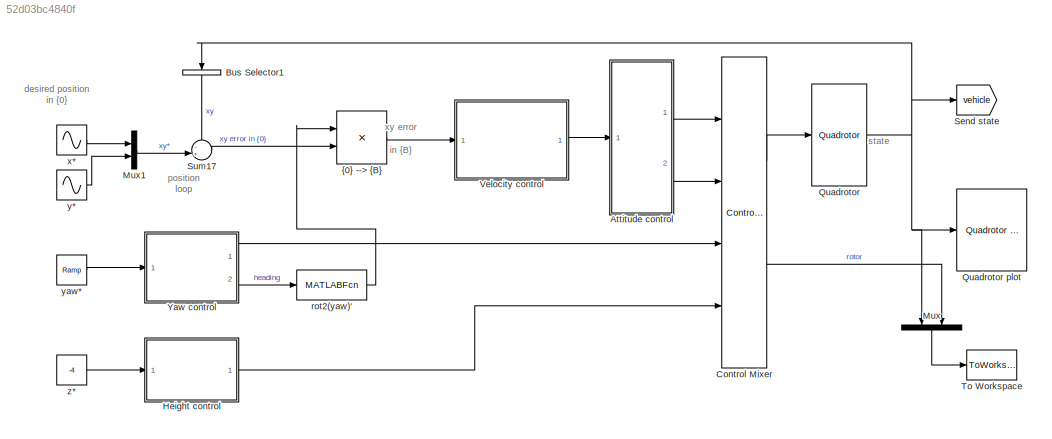
MODEL slx_52d03bc4840f
KIND model
CONFIG AbsTol = auto
CONFIG FixedStep = auto
CONFIG MaxStep = 0.1
CONFIG MinStep = auto
CONFIG PreLoadFcn = % load parameters of the default quadrotor\ndisp('Quadrotor parameters loaded by PreLoadFcn')\nmdl_quadrotor
CONFIG RelTol = 1e-3
CONFIG SampleTimeConstraint = Unconstrained
CONFIG Solver = ode45
CONFIG SolverMode = Auto
CONFIG SolverName = ode45
CONFIG StartTime = 0.0
CONFIG StopTime = 10
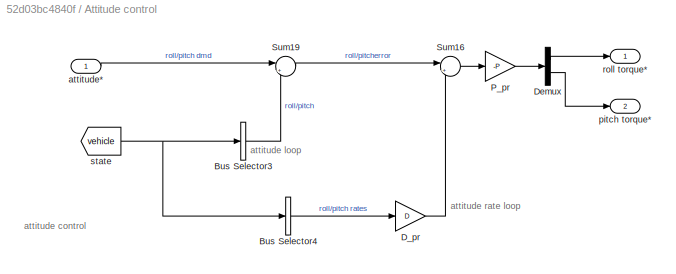
BLOCK [SubSystem] Attitude control
  Ports = [1, 2]
  RequestExecContextInheritance = off
  Variant = off
BLOCK [BusSelector] Attitude control/Bus Selector3
  OutputAsBus = on
  OutputSignals = roll,pitch
  Ports = [1, 1]
BLOCK [BusSelector] Attitude control/Bus Selector4
  OutputAsBus = on
  OutputSignals = droll,dpitch
  Ports = [1, 1]
BLOCK [Gain] Attitude control/D_pr
  Gain = D
  OutDataTypeStr = Inherit: Inherit via internal rule
  ParamDataTypeStr = Inherit: Inherit via internal rule
  SaturateOnIntegerOverflow = off
BLOCK [Demux] Attitude control/Demux
  DisplayOption = bar
  Outputs = 2
  Ports = [1, 2]
BLOCK [Gain] Attitude control/P_pr
  Gain = -P
  OutDataTypeStr = Inherit: Inherit via internal rule
  ParamDataTypeStr = Inherit: Inherit via internal rule
  SaturateOnIntegerOverflow = off
BLOCK [Sum] Attitude control/Sum16
  IconShape = round
  InputSameDT = off
  Inputs = |+-
  OutDataTypeStr = Inherit: Inherit via internal rule
  Ports = [2, 1]
  SaturateOnIntegerOverflow = off
BLOCK [Sum] Attitude control/Sum19
  IconShape = round
  InputSameDT = off
  Inputs = |+-
  OutDataTypeStr = Inherit: Inherit via internal rule
  Ports = [2, 1]
  SaturateOnIntegerOverflow = off
BLOCK [Inport] Attitude control/attitude*
  IconDisplay = Port number
BLOCK [Outport] Attitude control/pitch torque*
  IconDisplay = Port number
  Port = 2
BLOCK [Outport] Attitude control/roll torque*
  IconDisplay = Port number
BLOCK [From] Attitude control/state
  GotoTag = vehicle
  IconDisplay = Tag and signal name
  TagVisibility = global
BLOCK [BusSelector] Bus Selector1
  OutputAsBus = on
  OutputSignals = X,Y
  Ports = [1, 1]
BLOCK [Reference] Control Mixer  REF=roblocks/Vehicles/Control Mixer 4  (lib defined in mdl_2a292b13c81b, mdl_69400f8cfe22, +12 more)
  Ports = [4, 2]
  SourceBlock = roblocks/Vehicles/Control Mixer 4
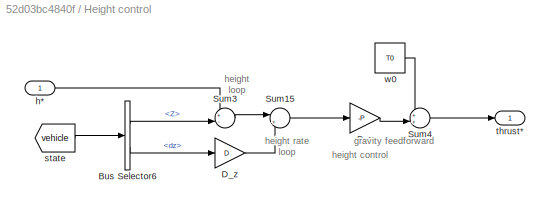
BLOCK [SubSystem] Height control
  Ports = [1, 1]
  RequestExecContextInheritance = off
  Variant = off
BLOCK [BusSelector] Height control/Bus Selector6
  OutputSignals = Z,dz
  Ports = [1, 2]
BLOCK [Gain] Height control/D_z
  Gain = D
  OutDataTypeStr = Inherit: Inherit via internal rule
  ParamDataTypeStr = Inherit: Inherit via internal rule
  SaturateOnIntegerOverflow = off
BLOCK [Gain] Height control/P_z
  Gain = -P
  OutDataTypeStr = Inherit: Inherit via internal rule
  ParamDataTypeStr = Inherit: Inherit via internal rule
  SaturateOnIntegerOverflow = off
BLOCK [Sum] Height control/Sum15
  IconShape = round
  InputSameDT = off
  Inputs = |+-
  OutDataTypeStr = Inherit: Inherit via internal rule
  Ports = [2, 1]
  SaturateOnIntegerOverflow = off
BLOCK [Sum] Height control/Sum3
  IconShape = round
  InputSameDT = off
  Inputs = +-|
  OutDataTypeStr = Inherit: Inherit via internal rule
  Ports = [2, 1]
  SaturateOnIntegerOverflow = off
BLOCK [Sum] Height control/Sum4
  IconShape = round
  InputSameDT = off
  Inputs = ++|
  OutDataTypeStr = Inherit: Inherit via internal rule
  Ports = [2, 1]
  SaturateOnIntegerOverflow = off
BLOCK [Inport] Height control/h*
  IconDisplay = Port number
BLOCK [From] Height control/state
  GotoTag = vehicle
  IconDisplay = Tag and signal name
  TagVisibility = global
BLOCK [Outport] Height control/thrust*
  IconDisplay = Port number
BLOCK [Constant] Height control/w0
  SampleTime = 0
  Value = T0
BLOCK [Mux] Mux
  DisplayOption = bar
  Inputs = 2
  Ports = [2, 1]
BLOCK [Mux] Mux1
  DisplayOption = bar
  Inputs = 2
  Ports = [2, 1]
BLOCK [Reference] Quadrotor  REF=roblocks/Vehicles/Quadrotor  (lib defined in mdl_2a292b13c81b, mdl_69400f8cfe22, +12 more)
  Ports = [1, 1]
  SourceBlock = roblocks/Vehicles/Quadrotor
BLOCK [Reference] Quadrotor plot  REF=roblocks/Vehicles/Quadrotor plot  (lib defined in mdl_2a292b13c81b, mdl_69400f8cfe22, +12 more)
  Ports = [1]
  SourceBlock = roblocks/Vehicles/Quadrotor plot
BLOCK [Goto] Send state
  GotoTag = vehicle
  IconDisplay = Tag and signal name
  TagVisibility = global
BLOCK [Sum] Sum17
  IconShape = round
  InputSameDT = off
  Inputs = -+|
  OutDataTypeStr = Inherit: Inherit via internal rule
  Ports = [2, 1]
  SaturateOnIntegerOverflow = off
BLOCK [ToWorkspace] To Workspace
  MaxDataPoints = inf
  Ports = [1]
  SampleTime = -1
  VariableName = result
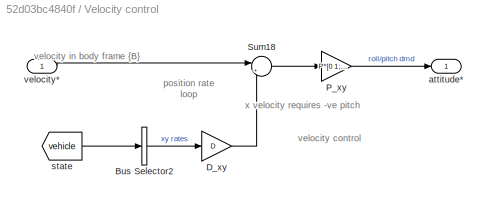
BLOCK [SubSystem] Velocity control
  Ports = [1, 1]
  RequestExecContextInheritance = off
  Variant = off
BLOCK [BusSelector] Velocity control/Bus Selector2
  OutputAsBus = on
  OutputSignals = dx,dy
  Ports = [1, 1]
BLOCK [Gain] Velocity control/D_xy
  Gain = D
  OutDataTypeStr = Inherit: Inherit via internal rule
  ParamDataTypeStr = Inherit: Inherit via internal rule
  SaturateOnIntegerOverflow = off
BLOCK [Gain] Velocity control/P_xy
  Gain = P*[0 1; -1 0]
  Multiplication = Matrix(K*u)
  OutDataTypeStr = Inherit: Inherit via internal rule
  ParamDataTypeStr = Inherit: Inherit via internal rule
  SaturateOnIntegerOverflow = off
BLOCK [Sum] Velocity control/Sum18
  IconShape = round
  InputSameDT = off
  Inputs = |+-
  OutDataTypeStr = Inherit: Inherit via internal rule
  Ports = [2, 1]
  SaturateOnIntegerOverflow = off
BLOCK [Outport] Velocity control/attitude*
  IconDisplay = Port number
BLOCK [From] Velocity control/state
  GotoTag = vehicle
  IconDisplay = Tag and signal name
  TagVisibility = global
BLOCK [Inport] Velocity control/velocity*
  IconDisplay = Port number
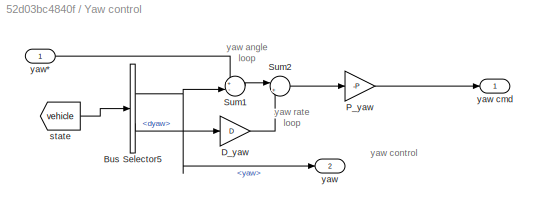
BLOCK [SubSystem] Yaw control
  Ports = [1, 2]
  RequestExecContextInheritance = off
  Variant = off
BLOCK [BusSelector] Yaw control/Bus Selector5
  OutputSignals = yaw,dyaw
  Ports = [1, 2]
BLOCK [Gain] Yaw control/D_yaw
  Gain = D
  OutDataTypeStr = Inherit: Inherit via internal rule
  ParamDataTypeStr = Inherit: Inherit via internal rule
  SaturateOnIntegerOverflow = off
BLOCK [Gain] Yaw control/P_yaw
  Gain = -P
  OutDataTypeStr = Inherit: Inherit via internal rule
  ParamDataTypeStr = Inherit: Inherit via internal rule
  SaturateOnIntegerOverflow = off
BLOCK [Sum] Yaw control/Sum1
  IconShape = round
  InputSameDT = off
  Inputs = +-|
  OutDataTypeStr = Inherit: Inherit via internal rule
  Ports = [2, 1]
  SaturateOnIntegerOverflow = off
BLOCK [Sum] Yaw control/Sum2
  IconShape = round
  InputSameDT = off
  Inputs = |+-
  OutDataTypeStr = Inherit: Inherit via internal rule
  Ports = [2, 1]
  SaturateOnIntegerOverflow = off
BLOCK [From] Yaw control/state
  GotoTag = vehicle
  IconDisplay = Tag and signal name
  TagVisibility = global
BLOCK [Outport] Yaw control/yaw
  IconDisplay = Port number
  Port = 2
BLOCK [Outport] Yaw control/yaw cmd
  IconDisplay = Port number
BLOCK [Inport] Yaw control/yaw*
  IconDisplay = Port number
BLOCK [MATLABFcn] rot2(yaw)'
  MATLABFcn = rot2(u)'
  Output1D = off
  OutputDimensions = [2 2]
  Ports = [1, 1]
BLOCK [Sin] x*
  Frequency = 2*pi*.125
  Phase = -pi/2
  Ports = [0, 1]
  SampleTime = 0
BLOCK [Sin] y*
  Frequency = 2*pi*.125
  Ports = [0, 1]
  SampleTime = 0
BLOCK [Reference] yaw*  REF=simulink/Sources/Ramp
  Ports = [0, 1]
  SourceBlock = simulink/Sources/Ramp
  SourceType = Ramp
BLOCK [Constant] z*
  SampleTime = 0
  Value = -4
BLOCK [Product] {0} --> {B}
  InputSameDT = off
  Multiplication = Matrix(*)
  OutDataTypeStr = Inherit: Inherit via internal rule
  Ports = [2, 1]
  SaturateOnIntegerOverflow = off
ANNOTATION (root): desired position in {0}
ANNOTATION (root): position loop
ANNOTATION (root): state
ANNOTATION (root): xy error in {B}
ANNOTATION Attitude control: attitude rate loop
ANNOTATION Attitude control: attitude loop
ANNOTATION Attitude control: attitude control
ANNOTATION Height control: height control
ANNOTATION Height control: gravity feedforward
ANNOTATION Height control: height loop
ANNOTATION Height control: height rate loop
ANNOTATION Velocity control: velocity control
ANNOTATION Velocity control: position rate loop
ANNOTATION Velocity control: velocity in body frame {B}
ANNOTATION Velocity control: x velocity requires -ve pitch
ANNOTATION Yaw control: yaw control
ANNOTATION Yaw control: yaw angle loop
ANNOTATION Yaw control: yaw rate loop
LINE Attitude control/Bus Selector3:1 -> Attitude control/Sum19:2
LINE Attitude control/Bus Selector4:1 -> Attitude control/D_pr:1
LINE Attitude control/D_pr:1 -> Attitude control/Sum16:2
LINE Attitude control/Demux:1 -> Attitude control/roll torque*:1
LINE Attitude control/Demux:2 -> Attitude control/pitch torque*:1
LINE Attitude control/P_pr:1 -> Attitude control/Demux:1
LINE Attitude control/Sum16:1 -> Attitude control/P_pr:1
LINE Attitude control/Sum19:1 -> Attitude control/Sum16:1
LINE Attitude control/attitude*:1 -> Attitude control/Sum19:1
NET Attitude control/state:1 -> Attitude control/Bus Selector3:1, Attitude control/Bus Selector4:1
LINE Attitude control:1 -> Control Mixer:1
LINE Attitude control:2 -> Control Mixer:2
LINE Bus Selector1:1 -> Sum17:1
LINE Control Mixer:1 -> Quadrotor:1
LINE Control Mixer:2 -> Mux:2
LINE Height control/Bus Selector6:1 -> Height control/Sum3:2
LINE Height control/Bus Selector6:2 -> Height control/D_z:1
LINE Height control/D_z:1 -> Height control/Sum15:2
LINE Height control/P_z:1 -> Height control/Sum4:2
LINE Height control/Sum15:1 -> Height control/P_z:1
LINE Height control/Sum3:1 -> Height control/Sum15:1
LINE Height control/Sum4:1 -> Height control/thrust*:1
LINE Height control/h*:1 -> Height control/Sum3:1
LINE Height control/state:1 -> Height control/Bus Selector6:1
LINE Height control/w0:1 -> Height control/Sum4:1
LINE Height control:1 -> Control Mixer:4
LINE Mux1:1 -> Sum17:2
LINE Mux:1 -> To Workspace:1
NET Quadrotor:1 -> Bus Selector1:1, Mux:1, Quadrotor plot:1, Send state:1
LINE Sum17:1 -> {0} --> {B}:2
LINE Velocity control/Bus Selector2:1 -> Velocity control/D_xy:1
LINE Velocity control/D_xy:1 -> Velocity control/Sum18:2
LINE Velocity control/P_xy:1 -> Velocity control/attitude*:1
LINE Velocity control/Sum18:1 -> Velocity control/P_xy:1
LINE Velocity control/state:1 -> Velocity control/Bus Selector2:1
LINE Velocity control/velocity*:1 -> Velocity control/Sum18:1
LINE Velocity control:1 -> Attitude control:1
NET Yaw control/Bus Selector5:1 -> Yaw control/Sum1:2, Yaw control/yaw:1
LINE Yaw control/Bus Selector5:2 -> Yaw control/D_yaw:1
LINE Yaw control/D_yaw:1 -> Yaw control/Sum2:2
LINE Yaw control/P_yaw:1 -> Yaw control/yaw cmd:1
LINE Yaw control/Sum1:1 -> Yaw control/Sum2:1
LINE Yaw control/Sum2:1 -> Yaw control/P_yaw:1
LINE Yaw control/state:1 -> Yaw control/Bus Selector5:1
LINE Yaw control/yaw*:1 -> Yaw control/Sum1:1
LINE Yaw control:1 -> Control Mixer:3
LINE Yaw control:2 -> rot2(yaw)':1
LINE rot2(yaw)':1 -> {0} --> {B}:1
LINE x*:1 -> Mux1:1
LINE y*:1 -> Mux1:2
LINE yaw*:1 -> Yaw control:1
LINE z*:1 -> Height control:1
LINE {0} --> {B}:1 -> Velocity control:1
note: NET lines group one-source signal fan-out (src -> all destinations, sorted); 1:1 wires keep LINE
